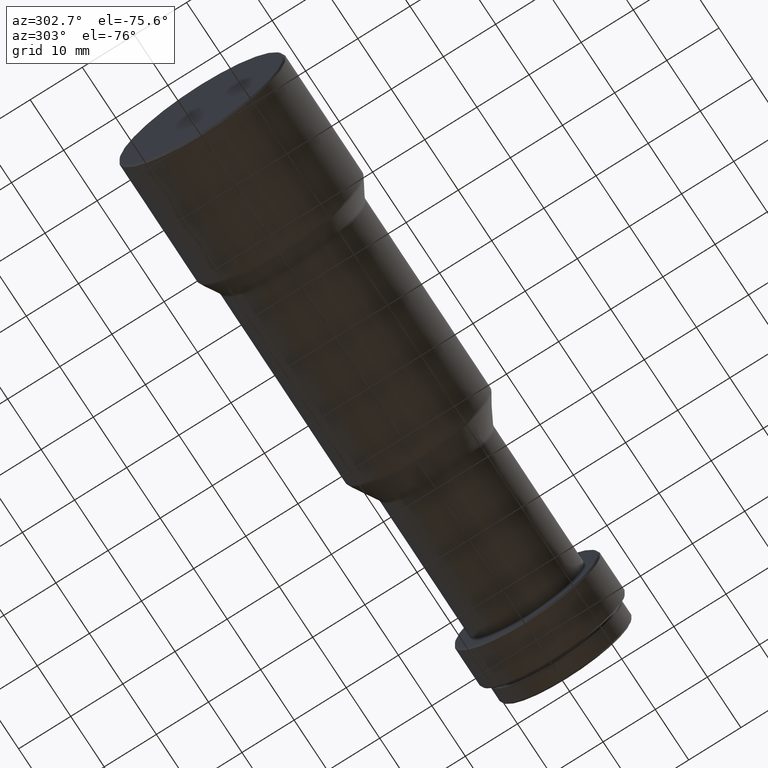
[diagram: clean part render]
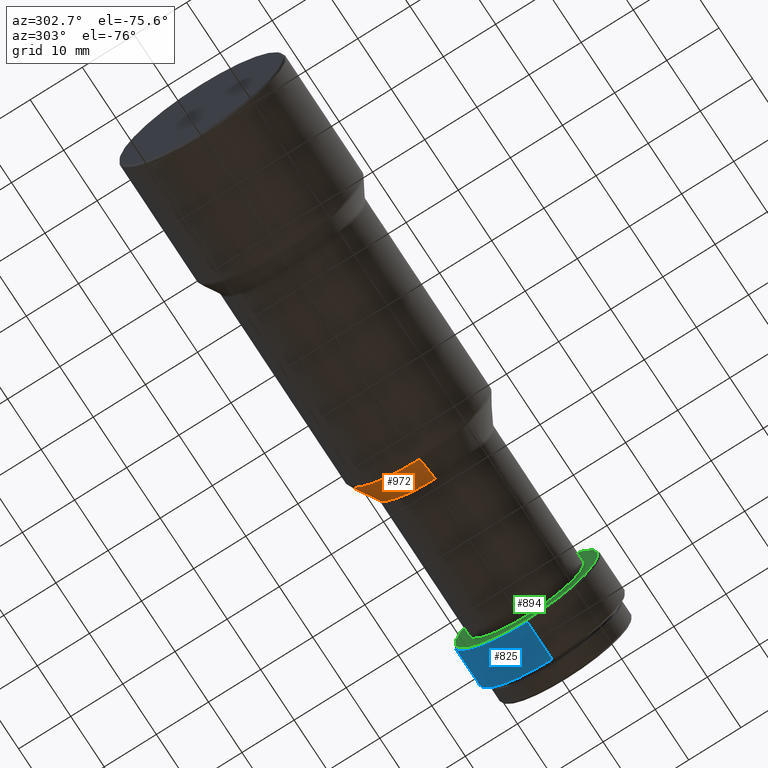
[diagram: same view with three faces highlighted in distinct colors, each labeled with its STEP entity id]
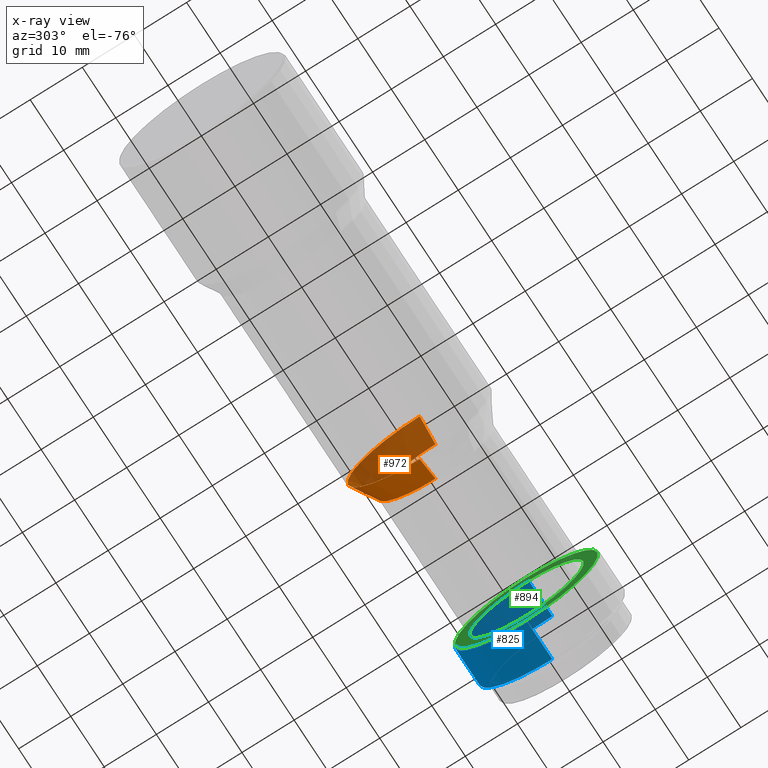
[diagram: x-ray of the same camera — body ghosted, the three highlighted faces saturated]
A machine part, auxiliary view with three faces highlighted in distinct colors.
The next image is the same camera in x-ray (body ghosted, the three faces saturated) — at least one of them is partly hidden behind the body in this view.
Their STEP definitions:

[orange] entity #972 — the highlighted conical surface has half-angle 30.169 deg.
#26 = LINE ( 'NONE', #89, #49 ) ;
#34 = CARTESIAN_POINT ( 'NONE',  ( 69.89744790704824600, 0.0000000000000000000, 11.13545307017500400 ) ) ;
#49 = VECTOR ( 'NONE', #409, 1000.000000000000000 ) ;
#73 = AXIS2_PLACEMENT_3D ( 'NONE', #920, #286, #451 ) ;
#89 = CARTESIAN_POINT ( 'NONE',  ( 69.89744790704824600, 1.363699695944538600E-015, -11.13545307017500400 ) ) ;
#92 = CIRCLE ( 'NONE', #386, 11.13545307017500400 ) ;
#154 = VERTEX_POINT ( 'NONE', #760 ) ;
#247 = ORIENTED_EDGE ( 'NONE', *, *, #308, .F. ) ;
#286 = DIRECTION ( 'NONE',  ( -1.000000000000000000, -0.0000000000000000000, -0.0000000000000000000 ) ) ;
#308 = EDGE_CURVE ( 'NONE', #790, #501, #755, .T. ) ;
#350 = DIRECTION ( 'NONE',  ( -1.000000000000000000, -0.0000000000000000000, -0.0000000000000000000 ) ) ;
#386 = AXIS2_PLACEMENT_3D ( 'NONE', #837, #350, #978 ) ;
#390 = VECTOR ( 'NONE', #522, 1000.000000000000000 ) ;
#391 = CARTESIAN_POINT ( 'NONE',  ( 65.20255209295174800, 0.0000000000000000000, 0.0000000000000000000 ) ) ;
#405 = CARTESIAN_POINT ( 'NONE',  ( 69.89744790704824600, 0.0000000000000000000, 11.13545307017500400 ) ) ;
#409 = DIRECTION ( 'NONE',  ( -0.8645469298249873800, 6.154488120381685900E-017, -0.5025520929517539600 ) ) ;
#451 = DIRECTION ( 'NONE',  ( 0.0000000000000000000, 0.0000000000000000000, 1.000000000000000000 ) ) ;
#482 = EDGE_CURVE ( 'NONE', #790, #154, #92, .T. ) ;
#488 = DIRECTION ( 'NONE',  ( 0.0000000000000000000, 0.0000000000000000000, 1.000000000000000000 ) ) ;
#501 = VERTEX_POINT ( 'NONE', #753 ) ;
#522 = DIRECTION ( 'NONE',  ( -0.8645469298249873800, 0.0000000000000000000, 0.5025520929517539600 ) ) ;
#531 = CONICAL_SURFACE ( 'NONE', #73, 11.13545307017500400, 0.5265481941832606000 ) ;
#641 = VERTEX_POINT ( 'NONE', #799 ) ;
#753 = CARTESIAN_POINT ( 'NONE',  ( 65.20255209295174800, 0.0000000000000000000, 13.86454692982498700 ) ) ;
#755 = LINE ( 'NONE', #34, #390 ) ;
#760 = CARTESIAN_POINT ( 'NONE',  ( 69.89744790704824600, 1.530808498934190900E-015, -11.13545307017500400 ) ) ;
#772 = EDGE_CURVE ( 'NONE', #501, #641, #995, .T. ) ;
#790 = VERTEX_POINT ( 'NONE', #405 ) ;
#799 = CARTESIAN_POINT ( 'NONE',  ( 65.20255209295174800, 1.706211410365068800E-015, -13.86454692982498700 ) ) ;
#815 = EDGE_LOOP ( 'NONE', ( #850, #969, #967, #247 ) ) ;
#826 = FACE_OUTER_BOUND ( 'NONE', #815, .T. ) ;
#830 = EDGE_CURVE ( 'NONE', #154, #641, #26, .T. ) ;
#837 = CARTESIAN_POINT ( 'NONE',  ( 69.89744790704824600, 0.0000000000000000000, 0.0000000000000000000 ) ) ;
#850 = ORIENTED_EDGE ( 'NONE', *, *, #482, .T. ) ;
#920 = CARTESIAN_POINT ( 'NONE',  ( 69.89744790704824600, 0.0000000000000000000, 0.0000000000000000000 ) ) ;
#967 = ORIENTED_EDGE ( 'NONE', *, *, #772, .F. ) ;
#969 = ORIENTED_EDGE ( 'NONE', *, *, #830, .T. ) ;
#972 = ADVANCED_FACE ( 'NONE', ( #826 ), #531, .T. ) ;
#978 = DIRECTION ( 'NONE',  ( 0.0000000000000000000, 0.0000000000000000000, 1.000000000000000000 ) ) ;
#989 = AXIS2_PLACEMENT_3D ( 'NONE', #391, #1013, #488 ) ;
#995 = CIRCLE ( 'NONE', #989, 13.86454692982498700 ) ;
#1013 = DIRECTION ( 'NONE',  ( -1.000000000000000000, -0.0000000000000000000, -0.0000000000000000000 ) ) ;

[blue] entity #825 — the highlighted cylindrical surface (partial cylindrical patch) has radius 14 mm, axis along (-1, -0, -0).
#4 = CARTESIAN_POINT ( 'NONE',  ( 104.8000000000000100, 1.714505518806294600E-015, -14.00000000000000000 ) ) ;
#16 = CARTESIAN_POINT ( 'NONE',  ( 97.39999999999999100, 0.0000000000000000000, -14.00000000000000000 ) ) ;
#19 = ORIENTED_EDGE ( 'NONE', *, *, #717, .T. ) ;
#36 = CARTESIAN_POINT ( 'NONE',  ( 0.0000000000000000000, 0.0000000000000000000, 14.00000000000000000 ) ) ;
#114 = VERTEX_POINT ( 'NONE', #648 ) ;
#167 = DIRECTION ( 'NONE',  ( -1.000000000000000000, -0.0000000000000000000, -0.0000000000000000000 ) ) ;
#185 = EDGE_CURVE ( 'NONE', #856, #287, #380, .T. ) ;
#187 = CYLINDRICAL_SURFACE ( 'NONE', #605, 14.00000000000000000 ) ;
#211 = AXIS2_PLACEMENT_3D ( 'NONE', #382, #369, #446 ) ;
#218 = EDGE_LOOP ( 'NONE', ( #19, #604, #763, #655 ) ) ;
#284 = EDGE_CURVE ( 'NONE', #114, #997, #910, .T. ) ;
#287 = VERTEX_POINT ( 'NONE', #16 ) ;
#298 = DIRECTION ( 'NONE',  ( -1.000000000000000000, -0.0000000000000000000, -0.0000000000000000000 ) ) ;
#301 = CARTESIAN_POINT ( 'NONE',  ( 0.0000000000000000000, 1.714505518806294600E-015, -14.00000000000000000 ) ) ;
#322 = DIRECTION ( 'NONE',  ( 0.0000000000000000000, 0.0000000000000000000, 1.000000000000000000 ) ) ;
#357 = CIRCLE ( 'NONE', #211, 14.00000000000000000 ) ;
#369 = DIRECTION ( 'NONE',  ( -1.000000000000000000, -0.0000000000000000000, -0.0000000000000000000 ) ) ;
#380 = LINE ( 'NONE', #301, #902 ) ;
#382 = CARTESIAN_POINT ( 'NONE',  ( 97.39999999999999100, 0.0000000000000000000, 0.0000000000000000000 ) ) ;
#445 = FACE_OUTER_BOUND ( 'NONE', #218, .T. ) ;
#446 = DIRECTION ( 'NONE',  ( 0.0000000000000000000, 0.0000000000000000000, 1.000000000000000000 ) ) ;
#453 = CARTESIAN_POINT ( 'NONE',  ( 97.39999999999999100, 1.714505518806294600E-015, 14.00000000000000000 ) ) ;
#492 = VECTOR ( 'NONE', #988, 1000.000000000000000 ) ;
#536 = AXIS2_PLACEMENT_3D ( 'NONE', #869, #705, #791 ) ;
#604 = ORIENTED_EDGE ( 'NONE', *, *, #185, .T. ) ;
#605 = AXIS2_PLACEMENT_3D ( 'NONE', #881, #167, #322 ) ;
#648 = CARTESIAN_POINT ( 'NONE',  ( 104.8000000000000100, 0.0000000000000000000, 14.00000000000000000 ) ) ;
#655 = ORIENTED_EDGE ( 'NONE', *, *, #284, .F. ) ;
#705 = DIRECTION ( 'NONE',  ( -1.000000000000000000, -0.0000000000000000000, -0.0000000000000000000 ) ) ;
#717 = EDGE_CURVE ( 'NONE', #114, #856, #789, .T. ) ;
#763 = ORIENTED_EDGE ( 'NONE', *, *, #964, .F. ) ;
#789 = CIRCLE ( 'NONE', #536, 14.00000000000000000 ) ;
#791 = DIRECTION ( 'NONE',  ( 0.0000000000000000000, 0.0000000000000000000, 1.000000000000000000 ) ) ;
#825 = ADVANCED_FACE ( 'NONE', ( #445 ), #187, .T. ) ;
#856 = VERTEX_POINT ( 'NONE', #4 ) ;
#869 = CARTESIAN_POINT ( 'NONE',  ( 104.8000000000000100, 0.0000000000000000000, 0.0000000000000000000 ) ) ;
#881 = CARTESIAN_POINT ( 'NONE',  ( 0.0000000000000000000, 0.0000000000000000000, 0.0000000000000000000 ) ) ;
#902 = VECTOR ( 'NONE', #298, 1000.000000000000000 ) ;
#910 = LINE ( 'NONE', #36, #492 ) ;
#964 = EDGE_CURVE ( 'NONE', #997, #287, #357, .T. ) ;
#988 = DIRECTION ( 'NONE',  ( -1.000000000000000000, -0.0000000000000000000, -0.0000000000000000000 ) ) ;
#997 = VERTEX_POINT ( 'NONE', #453 ) ;

[green] entity #894 — the highlighted planar face has unit normal (1, 0, 0).
#12 = CARTESIAN_POINT ( 'NONE',  ( 97.09999999999999400, 0.0000000000000000000, 11.00000000000000000 ) ) ;
#14 = EDGE_CURVE ( 'NONE', #404, #307, #269, .T. ) ;
#32 = DIRECTION ( 'NONE',  ( -1.000000000000000000, -0.0000000000000000000, -0.0000000000000000000 ) ) ;
#59 = DIRECTION ( 'NONE',  ( 0.0000000000000000000, 0.0000000000000000000, -1.000000000000000000 ) ) ;
#62 = FACE_BOUND ( 'NONE', #359, .T. ) ;
#132 = AXIS2_PLACEMENT_3D ( 'NONE', #385, #548, #1019 ) ;
#134 = CARTESIAN_POINT ( 'NONE',  ( 97.09999999999999400, 0.0000000000000000000, -13.70000000000000100 ) ) ;
#163 = EDGE_CURVE ( 'NONE', #307, #404, #581, .T. ) ;
#269 = CIRCLE ( 'NONE', #975, 11.00000000000000000 ) ;
#280 = DIRECTION ( 'NONE',  ( -1.000000000000000000, -0.0000000000000000000, -0.0000000000000000000 ) ) ;
#290 = AXIS2_PLACEMENT_3D ( 'NONE', #926, #606, #532 ) ;
#292 = DIRECTION ( 'NONE',  ( 1.000000000000000000, 0.0000000000000000000, 0.0000000000000000000 ) ) ;
#307 = VERTEX_POINT ( 'NONE', #12 ) ;
#354 = DIRECTION ( 'NONE',  ( 0.0000000000000000000, 0.0000000000000000000, 1.000000000000000000 ) ) ;
#359 = EDGE_LOOP ( 'NONE', ( #767, #738 ) ) ;
#385 = CARTESIAN_POINT ( 'NONE',  ( 97.09999999999999400, 0.0000000000000000000, 0.0000000000000000000 ) ) ;
#404 = VERTEX_POINT ( 'NONE', #827 ) ;
#509 = DIRECTION ( 'NONE',  ( 0.0000000000000000000, 0.0000000000000000000, 1.000000000000000000 ) ) ;
#511 = FACE_OUTER_BOUND ( 'NONE', #603, .T. ) ;
#532 = DIRECTION ( 'NONE',  ( 0.0000000000000000000, 0.0000000000000000000, 1.000000000000000000 ) ) ;
#537 = EDGE_CURVE ( 'NONE', #1008, #1018, #589, .T. ) ;
#548 = DIRECTION ( 'NONE',  ( -1.000000000000000000, -0.0000000000000000000, -0.0000000000000000000 ) ) ;
#581 = CIRCLE ( 'NONE', #649, 11.00000000000000000 ) ;
#589 = CIRCLE ( 'NONE', #132, 13.70000000000000100 ) ;
#603 = EDGE_LOOP ( 'NONE', ( #706, #917 ) ) ;
#606 = DIRECTION ( 'NONE',  ( -1.000000000000000000, -0.0000000000000000000, -0.0000000000000000000 ) ) ;
#609 = CARTESIAN_POINT ( 'NONE',  ( 97.09999999999999400, 11.00000000000000000, 0.0000000000000000000 ) ) ;
#649 = AXIS2_PLACEMENT_3D ( 'NONE', #768, #280, #354 ) ;
#706 = ORIENTED_EDGE ( 'NONE', *, *, #537, .T. ) ;
#738 = ORIENTED_EDGE ( 'NONE', *, *, #14, .F. ) ;
#744 = CARTESIAN_POINT ( 'NONE',  ( 97.09999999999999400, 0.0000000000000000000, 0.0000000000000000000 ) ) ;
#767 = ORIENTED_EDGE ( 'NONE', *, *, #163, .F. ) ;
#768 = CARTESIAN_POINT ( 'NONE',  ( 97.09999999999999400, 0.0000000000000000000, 0.0000000000000000000 ) ) ;
#827 = CARTESIAN_POINT ( 'NONE',  ( 97.09999999999999400, 1.347111479062088400E-015, -10.99999999999999800 ) ) ;
#836 = AXIS2_PLACEMENT_3D ( 'NONE', #609, #292, #59 ) ;
#878 = EDGE_CURVE ( 'NONE', #1018, #1008, #914, .T. ) ;
#894 = ADVANCED_FACE ( 'NONE', ( #62, #511 ), #1007, .F. ) ;
#914 = CIRCLE ( 'NONE', #290, 13.70000000000000100 ) ;
#917 = ORIENTED_EDGE ( 'NONE', *, *, #878, .T. ) ;
#925 = CARTESIAN_POINT ( 'NONE',  ( 97.09999999999999400, 1.696135816819084200E-015, 13.70000000000000100 ) ) ;
#926 = CARTESIAN_POINT ( 'NONE',  ( 97.09999999999999400, 0.0000000000000000000, 0.0000000000000000000 ) ) ;
#975 = AXIS2_PLACEMENT_3D ( 'NONE', #744, #32, #509 ) ;
#1007 = PLANE ( 'NONE',  #836 ) ;
#1008 = VERTEX_POINT ( 'NONE', #134 ) ;
#1018 = VERTEX_POINT ( 'NONE', #925 ) ;
#1019 = DIRECTION ( 'NONE',  ( 0.0000000000000000000, 0.0000000000000000000, 1.000000000000000000 ) ) ;